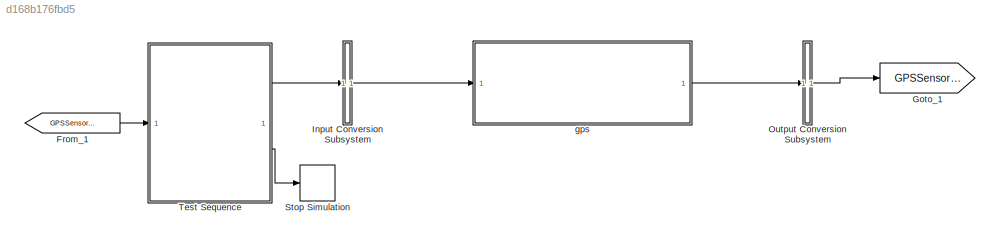
MODEL slx_d168b176fbd5
KIND model
BLOCK [From] From_1
  GotoTag = GPSSensorBus
BLOCK [Goto] Goto_1
  GotoTag = GPSSensorBus
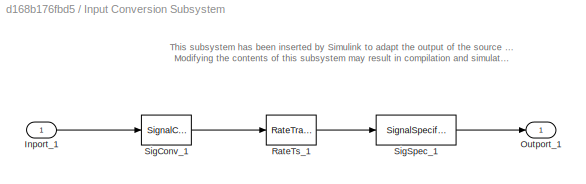
BLOCK [SubSystem] Input Conversion Subsystem
  AttributesFormatString = %<Description>
  Description = Signal spec.\nand routing
  Permissions = ReadOnly
  PermitHierarchicalResolution = ExplicitOnly
  Tag = __SLT_ICS__
  TreatAsGroupedWhenPropagatingVariantConditions = off
  UserDataPersistent = on
BLOCK [Inport] Input Conversion Subsystem/Inport_1
BLOCK [Outport] Input Conversion Subsystem/Outport_1
BLOCK [RateTransition] Input Conversion Subsystem/RateTs_1
  OutPortSampleTime = 0.004
BLOCK [SignalConversion] Input Conversion Subsystem/SigConv_1
  ConversionOutput = Virtual bus
  OverrideOpt = off
BLOCK [SignalSpecification] Input Conversion Subsystem/SigSpec_1
  OutDataTypeStr = Bus: BodyStateBus
  SampleTime = 0.004
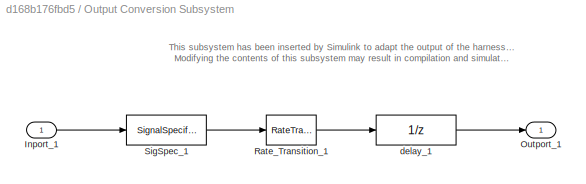
BLOCK [SubSystem] Output Conversion Subsystem
  AttributesFormatString = %<Description>
  Description = Signal spec.\nand routing
  Permissions = ReadOnly
  PermitHierarchicalResolution = ExplicitOnly
  Tag = __SLT_OCS__
  TreatAsGroupedWhenPropagatingVariantConditions = off
  UserDataPersistent = on
BLOCK [Inport] Output Conversion Subsystem/Inport_1
BLOCK [Outport] Output Conversion Subsystem/Outport_1
BLOCK [RateTransition] Output Conversion Subsystem/Rate_Transition_1
  OutPortSampleTimeOpt = Inherit
BLOCK [SignalSpecification] Output Conversion Subsystem/SigSpec_1
  Dimensions = [1]
  OutDataTypeStr = Bus: GPSSensorBus
  SampleTime = 0.004
  SignalType = real
  VarSizeSig = No
BLOCK [UnitDelay] Output Conversion Subsystem/delay_1
  InitialCondition = IC1
  SampleTime = -1
BLOCK [Stop] Stop Simulation
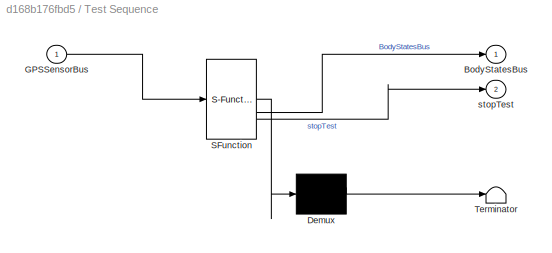
BLOCK [SubSystem] Test Sequence
  ErrorFcn = Stateflow.Translate.translate
  PermitHierarchicalResolution = ExplicitOnly
  SFBlockType = Test Sequence
  ShowPortLabels = none
  TreatAsAtomicUnit = on
BLOCK [Demux] Test Sequence/ Demux 
  Outputs = 1
BLOCK [S-Function] Test Sequence/ SFunction 
  EnableBusSupport = on
  FunctionName = sf_sfun
  Parameters = 1,referenceLatitude_deg,referenceLongitude_deg,terrainHeightNED_m
  PortCounts = [1 3]
  SFcnIsStateOwnerBlock = off
  SFunctionDeploymentMode = off
  Tag = Stateflow S-Function 4
BLOCK [Terminator] Test Sequence/ Terminator 
BLOCK [Outport] Test Sequence/BodyStatesBus
BLOCK [Inport] Test Sequence/GPSSensorBus
BLOCK [Outport] Test Sequence/stopTest
  Port = 2
BLOCK [ModelReference] gps
  ModelNameDialog = gps
  ModelReferenceVersion = 1.43
ANNOTATION Input Conversion Subsystem: This subsystem has been inserted by Simulink to adapt the output of the source blocks to the interface required by the harnessed component. Modifying the contents of this subsystem may result in compilation and simulation failure.
ANNOTATION Output Conversion Subsystem: This subsystem has been inserted by Simulink to adapt the output of the harnessed component to the interface required by the sink blocks. Modifying the contents of this subsystem may result in compilation and simulation failure.
LINE From_1:1 -> Test Sequence:1
LINE Input Conversion Subsystem/Inport_1:1 -> Input Conversion Subsystem/SigConv_1:1
LINE Input Conversion Subsystem/RateTs_1:1 -> Input Conversion Subsystem/SigSpec_1:1
LINE Input Conversion Subsystem/SigConv_1:1 -> Input Conversion Subsystem/RateTs_1:1
LINE Input Conversion Subsystem/SigSpec_1:1 -> Input Conversion Subsystem/Outport_1:1
LINE Input Conversion Subsystem:1 -> gps:1
LINE Output Conversion Subsystem/Inport_1:1 -> Output Conversion Subsystem/SigSpec_1:1
LINE Output Conversion Subsystem/Rate_Transition_1:1 -> Output Conversion Subsystem/delay_1:1
LINE Output Conversion Subsystem/SigSpec_1:1 -> Output Conversion Subsystem/Rate_Transition_1:1
LINE Output Conversion Subsystem/delay_1:1 -> Output Conversion Subsystem/Outport_1:1
LINE Output Conversion Subsystem:1 -> Goto_1:1
LINE Test Sequence:1 -> Input Conversion Subsystem:1
LINE Test Sequence:2 -> Stop Simulation:1
LINE gps:1 -> Output Conversion Subsystem:1
CHART Test Sequence states=6 transitions=6
  STATE_LABEL 'Scenario_1'
  STATE_LABEL 'Initialize\n\n%% Initialize data outputs.\nstopTest = false;\nBodyStatesBus.aircraftVelInNED_mps = zeros(3,1);\nBodyStatesBus.aircraftPosInNED_m = zeros(3,1);\nBodyStatesBus.aircraftEulerAngles_rad = zeros(3,1);\nBodyStatesBus.aircraftVelInBody_mps = zeros(3,1);\nBodyStatesBus.aircraftAngVelInBody_radps = zeros(3,1);\nBodyStatesBus.aircraftAngAccelInBody_radps2 = zeros(3,1);\nBodyStatesBus.aircraftAccelInBo...<+56ch>'
  STATE_LABEL "checkGpsStatic\n\nverify(isClose(GPSSensorBus.lat_deg, referenceLatitude_deg))\nverify(isClose(GPSSensorBus.lon_deg, referenceLongitude_deg))\nverify(isClose(GPSSensorBus.alt_m, terrainHeightNED_m, 'atol', 0.5))\nverify(isClose(GPSSensorBus.vel_mps, 0, 'atol', 0.5))\nverify(isClose(GPSSensorBus.vel_n_mps, 0, 'atol', 0.5))\nverify(isClose(GPSSensorBus.vel_e_mps, 0, 'atol', 0.5))\nverify(isClose(GPSSensorBu...<+30ch>"
  STATE_LABEL "goHighDynamic\nBodyStatesBus.aircraftVelInNED_mps = [10 20 30]';\nBodyStatesBus.aircraftPosInNED_m = [0 0 -3048]';\nBodyStatesBus.aircraftEulerAngles_rad = [0.1 0.2 0.3]';\nBodyStatesBus.aircraftVelInBody_mps = zeros(3,1);\nBodyStatesBus.aircraftAngVelInBody_radps =  [0.1 0.2 0.3]';\nBodyStatesBus.aircraftAngAccelInBody_radps2 =  [0.1 0.2 0.3]';\nBodyStatesBus.aircraftAccelInBody_mps2 =  [0.1 0.2 0.3]';\n...<+34ch>"
  STATE_LABEL "checkHighDynamic\nverify(isClose(GPSSensorBus.lat_deg, referenceLatitude_deg))\nverify(isClose(GPSSensorBus.lon_deg, referenceLongitude_deg))\nverify(isClose(GPSSensorBus.alt_m, 3048 + terrainHeightNED_m))\nverify(isClose(GPSSensorBus.vel_mps, norm([10 20 30]), 'rtol', 0.8)) %why is this one so bad?\nverify(isClose(GPSSensorBus.vel_n_mps, 10, 'rtol', 0.1))\nverify(isClose(GPSSensorBus.vel_e_mps, 20, 'rt...<+67ch>"
  STATE_LABEL 'EndTest\nstopTest = true;'
  STATE_LABEL '[\ntrue\n]'
  STATE_LABEL '[\ntrue\n]'
  STATE_LABEL '[\ntrue\n]'
  STATE_LABEL '[\ntrue\n]'
  STATE_LABEL 'Initialize\n\n%% Initialize data outputs.\nstopTest = false;\nBodyStatesBus.aircraftVelInNED_mps = zeros(3,1);\nBodyStatesBus.aircraftPosInNED_m = zeros(3,1);\nBodyStatesBus.aircraftEulerAngles_rad = zeros(3,1);\nBodyStatesBus.aircraftVelInBody_mps = zeros(3,1);\nBodyStatesBus.aircraftAngVelInBody_radps = zeros(3,1);\nBodyStatesBus.aircraftAngAccelInBody_radps2 = zeros(3,1);\nBodyStatesBus.aircraftAccelInBo...<+56ch>'
  STATE_LABEL "checkGpsStatic\n\nverify(isClose(GPSSensorBus.lat_deg, referenceLatitude_deg))\nverify(isClose(GPSSensorBus.lon_deg, referenceLongitude_deg))\nverify(isClose(GPSSensorBus.alt_m, terrainHeightNED_m, 'atol', 0.5))\nverify(isClose(GPSSensorBus.vel_mps, 0, 'atol', 0.5))\nverify(isClose(GPSSensorBus.vel_n_mps, 0, 'atol', 0.5))\nverify(isClose(GPSSensorBus.vel_e_mps, 0, 'atol', 0.5))\nverify(isClose(GPSSensorBu...<+30ch>"
  STATE_LABEL "goHighDynamic\nBodyStatesBus.aircraftVelInNED_mps = [10 20 30]';\nBodyStatesBus.aircraftPosInNED_m = [0 0 -3048]';\nBodyStatesBus.aircraftEulerAngles_rad = [0.1 0.2 0.3]';\nBodyStatesBus.aircraftVelInBody_mps = zeros(3,1);\nBodyStatesBus.aircraftAngVelInBody_radps =  [0.1 0.2 0.3]';\nBodyStatesBus.aircraftAngAccelInBody_radps2 =  [0.1 0.2 0.3]';\nBodyStatesBus.aircraftAccelInBody_mps2 =  [0.1 0.2 0.3]';\n...<+34ch>"
  STATE_LABEL "checkHighDynamic\nverify(isClose(GPSSensorBus.lat_deg, referenceLatitude_deg))\nverify(isClose(GPSSensorBus.lon_deg, referenceLongitude_deg))\nverify(isClose(GPSSensorBus.alt_m, 3048 + terrainHeightNED_m))\nverify(isClose(GPSSensorBus.vel_mps, norm([10 20 30]), 'rtol', 0.8)) %why is this one so bad?\nverify(isClose(GPSSensorBus.vel_n_mps, 10, 'rtol', 0.1))\nverify(isClose(GPSSensorBus.vel_e_mps, 20, 'rt...<+67ch>"
  STATE_LABEL 'EndTest\nstopTest = true;'
